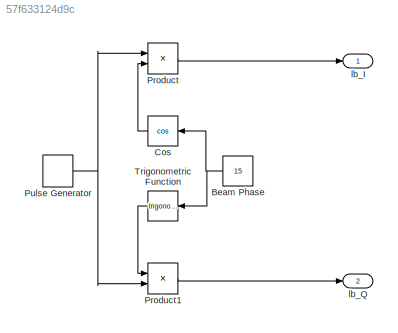
MODEL slx_57f633124d9c
KIND model
CONFIG AbsTol = auto
CONFIG EnableMultiTasking = off
CONFIG FixedStep = auto
CONFIG MaxStep = auto
CONFIG MinStep = auto
CONFIG RelTol = 1e-3
CONFIG SampleTimeConstraint = Unconstrained
CONFIG SolverName = VariableStepAuto
CONFIG StartTime = 0.0
CONFIG StopTime = 10.0
BLOCK [Constant] Beam Phase
  Value = 15
BLOCK [Trigonometry] Cos
  Operator = cos
BLOCK [Product] Product
BLOCK [Product] Product1
BLOCK [DiscretePulseGenerator] Pulse Generator
  Period = 0.04
  PulseType = Time based
  PulseWidth = 5
BLOCK [Trigonometry] Trigonometric Function
BLOCK [Outport] lb_I
BLOCK [Outport] lb_Q
  Port = 2
NET Beam Phase:1 -> Cos:1, Trigonometric Function:1
LINE Cos:1 -> Product:2
LINE Product1:1 -> lb_Q:1
LINE Product:1 -> lb_I:1
NET Pulse Generator:1 -> Product1:2, Product:1
LINE Trigonometric Function:1 -> Product1:1
note: NET lines group one-source signal fan-out (src -> all destinations, sorted); 1:1 wires keep LINE
